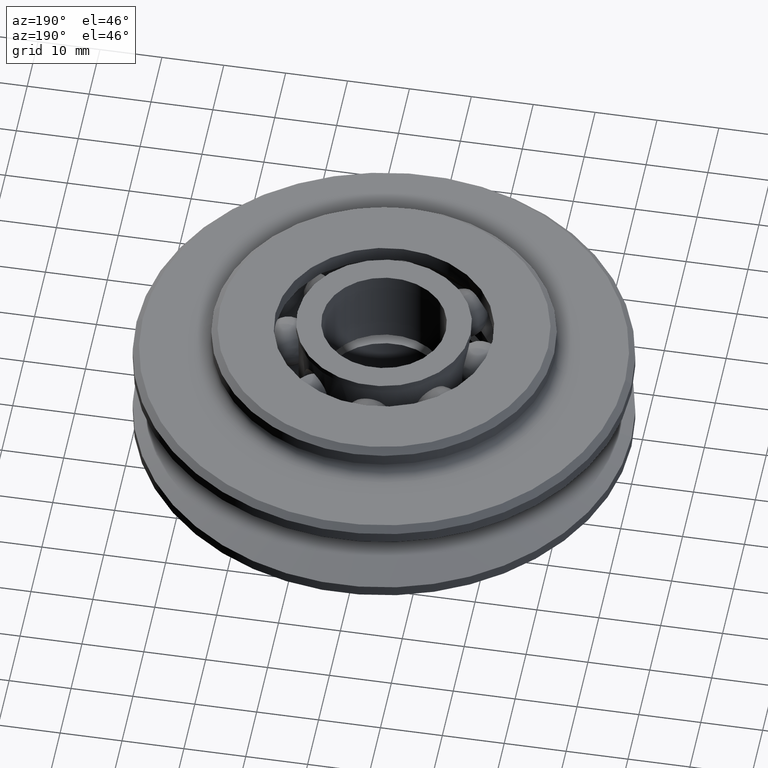
[diagram: clean part render]
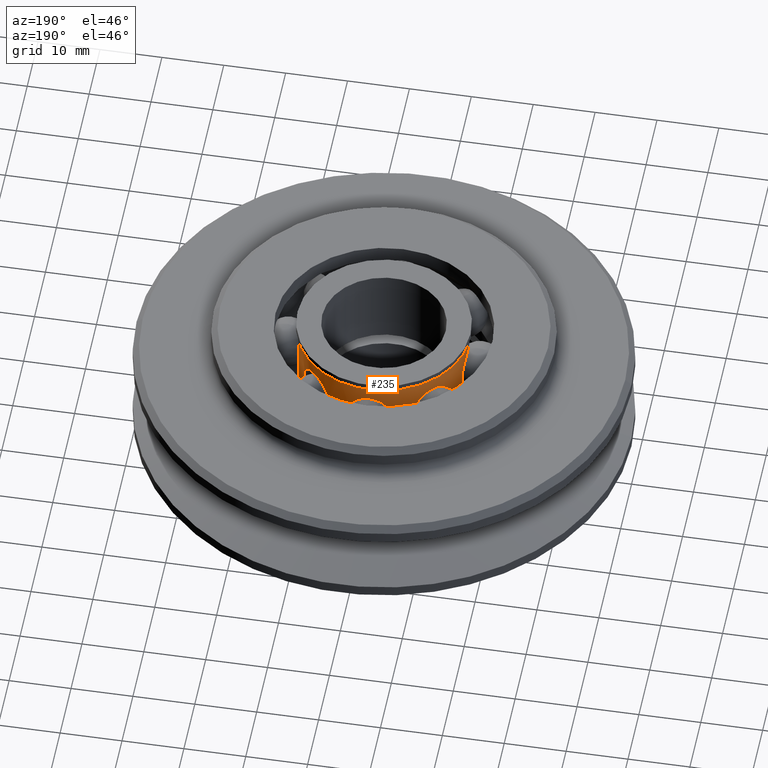
[diagram: same view with one face highlighted and labeled with its STEP entity id]
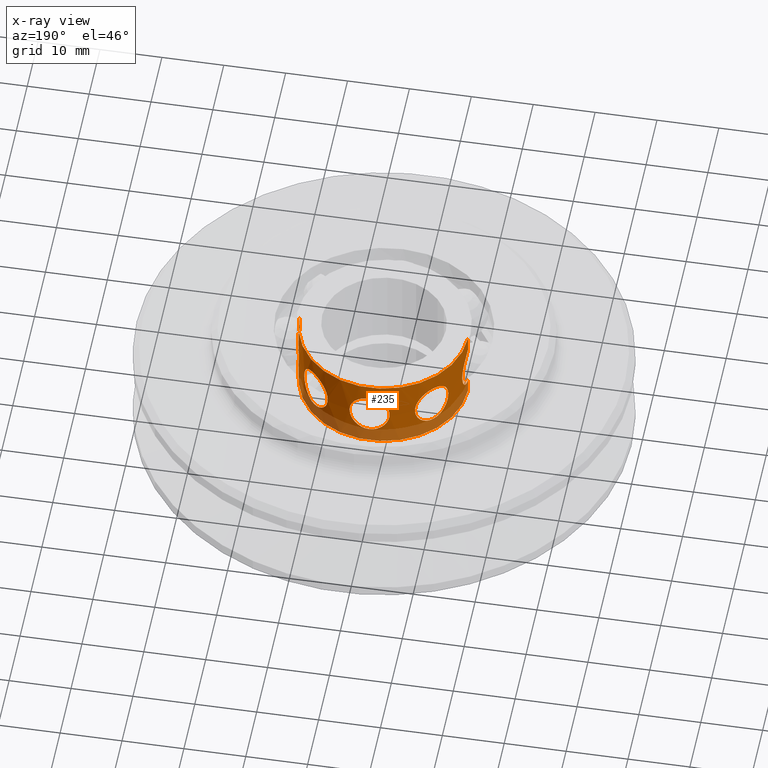
[diagram: x-ray of the same camera — body ghosted, the highlighted face saturated]
A machine part, auxiliary view. The second image highlights one B-rep face of the part: STEP entity #235.
The next image is the same camera in x-ray: the body ghosted, the highlighted face saturated — about 30% of this face is hidden behind the body in this view.
In plain terms, the highlighted cylindrical surface (partial cylindrical patch) has radius 13.6 mm, axis along (0, 0, 1).
Its self-contained STEP definition (entity closure, byte-faithful):
#235=ADVANCED_FACE('',(#547,#548,#549,#550),#551,.T.);
#547=FACE_BOUND('',#957,.T.);
#548=FACE_BOUND('',#958,.T.);
#549=FACE_BOUND('',#959,.T.);
#550=FACE_OUTER_BOUND('',#960,.T.);
#551=CYLINDRICAL_SURFACE('',#961,13.6);
#957=EDGE_LOOP('',(#1633,#1634,#1635));
#958=EDGE_LOOP('',(#1636,#1637,#1638));
#959=EDGE_LOOP('',(#1639,#1640,#1641));
#960=EDGE_LOOP('',(#1642,#1643,#1644,#1645,#1646,#1647,#1648,#1649,#1650));
#961=AXIS2_PLACEMENT_3D('',#1651,#1652,#1653);
#1633=ORIENTED_EDGE('',*,*,#2806,.F.);
#1634=ORIENTED_EDGE('',*,*,#2807,.F.);
#1635=ORIENTED_EDGE('',*,*,#2751,.F.);
#1636=ORIENTED_EDGE('',*,*,#2808,.F.);
#1637=ORIENTED_EDGE('',*,*,#2809,.F.);
#1638=ORIENTED_EDGE('',*,*,#2747,.F.);
#1639=ORIENTED_EDGE('',*,*,#2810,.F.);
#1640=ORIENTED_EDGE('',*,*,#2811,.F.);
#1641=ORIENTED_EDGE('',*,*,#2739,.F.);
#1642=ORIENTED_EDGE('',*,*,#2812,.F.);
#1643=ORIENTED_EDGE('',*,*,#2813,.F.);
#1644=ORIENTED_EDGE('',*,*,#2814,.F.);
#1645=ORIENTED_EDGE('',*,*,#2815,.F.);
#1646=ORIENTED_EDGE('',*,*,#2816,.F.);
#1647=ORIENTED_EDGE('',*,*,#2817,.F.);
#1648=ORIENTED_EDGE('',*,*,#2818,.F.);
#1649=ORIENTED_EDGE('',*,*,#2819,.F.);
#1650=ORIENTED_EDGE('',*,*,#2720,.F.);
#1651=CARTESIAN_POINT('',(0.0,0.0,7.0));
#1652=DIRECTION('',(0.0,0.0,1.0));
#1653=DIRECTION('',(1.0,0.0,0.0));
#2720=EDGE_CURVE('',#3365,#3367,#3368,.T.);
#2739=EDGE_CURVE('',#3396,#3398,#3399,.T.);
#2747=EDGE_CURVE('',#3410,#3412,#3413,.T.);
#2751=EDGE_CURVE('',#3416,#3419,#3420,.T.);
#2806=EDGE_CURVE('',#3511,#3416,#3512,.T.);
#2807=EDGE_CURVE('',#3419,#3511,#3513,.T.);
#2808=EDGE_CURVE('',#3514,#3410,#3515,.T.);
#2809=EDGE_CURVE('',#3412,#3514,#3516,.T.);
#2810=EDGE_CURVE('',#3517,#3396,#3518,.T.);
#2811=EDGE_CURVE('',#3398,#3517,#3519,.T.);
#2812=EDGE_CURVE('',#3520,#3365,#3521,.T.);
#2813=EDGE_CURVE('',#3522,#3520,#3523,.T.);
#2814=EDGE_CURVE('',#3430,#3522,#3524,.T.);
#2815=EDGE_CURVE('',#3525,#3430,#3526,.T.);
#2816=EDGE_CURVE('',#3433,#3525,#3527,.T.);
#2817=EDGE_CURVE('',#3528,#3433,#3529,.T.);
#2818=EDGE_CURVE('',#3530,#3528,#3531,.T.);
#2819=EDGE_CURVE('',#3367,#3530,#3532,.T.);
#3365=VERTEX_POINT('',#5080);
#3367=VERTEX_POINT('',#5082);
#3368=B_SPLINE_CURVE_WITH_KNOTS('',3,(#5083,#5084,#5085,#5086,#5087,#5088,#5089,#5090,#5091,#5092,#5093,#5094,#5095,#5096,#5097,#5098,#5099,#5100,#5101,#5102,#5103,#5104,#5105,#5106,#5107,#5108,#5109,#5110,#5111,#5112,#5113,#5114,#5115,#5116),.UNSPECIFIED.,.F.,.F.,(4,2,2,2,2,2,2,2,2,2,2,2,2,2,2,2,4),(5.11884378408548,5.51801321408464,5.91718264408379,6.31635207408295,6.71552150408211,7.59606302010432,8.47660453612653,9.35714605214875,10.237687568171,11.1182290841932,11.9987706002154,12.8793121162376,13.7598536322598,14.159023062259,14.5581924922581,14.9573619222573,15.3565313522564),.UNSPECIFIED.);
#3396=VERTEX_POINT('',#5244);
#3398=VERTEX_POINT('',#5246);
#3399=B_SPLINE_CURVE_WITH_KNOTS('',3,(#5247,#5248,#5249,#5250,#5251,#5252,#5253,#5254,#5255,#5256,#5257,#5258,#5259,#5260,#5261,#5262,#5263,#5264,#5265,#5266,#5267,#5268,#5269,#5270,#5271,#5272,#5273,#5274,#5275,#5276,#5277,#5278,#5279,#5280),.UNSPECIFIED.,.F.,.F.,(4,2,2,2,2,2,2,2,2,2,2,2,2,2,2,2,4),(5.11884378408547,5.51801321408463,5.91718264408379,6.31635207408294,6.7155215040821,7.59606302010431,8.47660453612652,9.35714605214874,10.237687568171,11.1182290841932,11.9987706002154,12.8793121162376,13.7598536322598,14.159023062259,14.5581924922581,14.9573619222573,15.3565313522564),.UNSPECIFIED.);
#3410=VERTEX_POINT('',#5326);
#3412=VERTEX_POINT('',#5328);
#3413=B_SPLINE_CURVE_WITH_KNOTS('',3,(#5329,#5330,#5331,#5332,#5333,#5334,#5335,#5336,#5337,#5338,#5339,#5340,#5341,#5342,#5343,#5344,#5345,#5346,#5347,#5348,#5349,#5350,#5351,#5352,#5353,#5354,#5355,#5356,#5357,#5358,#5359,#5360,#5361,#5362),.UNSPECIFIED.,.F.,.F.,(4,2,2,2,2,2,2,2,2,2,2,2,2,2,2,2,4),(5.11884378408548,5.51801321408463,5.91718264408379,6.31635207408294,6.7155215040821,7.59606302010431,8.47660453612653,9.35714605214874,10.237687568171,11.1182290841932,11.9987706002154,12.8793121162376,13.7598536322598,14.159023062259,14.5581924922581,14.9573619222573,15.3565313522564),.UNSPECIFIED.);
#3416=VERTEX_POINT('',#5365);
#3419=VERTEX_POINT('',#5368);
#3420=B_SPLINE_CURVE_WITH_KNOTS('',3,(#5369,#5370,#5371,#5372,#5373,#5374,#5375,#5376,#5377,#5378,#5379,#5380,#5381,#5382,#5383,#5384,#5385,#5386,#5387,#5388,#5389,#5390,#5391,#5392,#5393,#5394,#5395,#5396,#5397,#5398,#5399,#5400,#5401,#5402),.UNSPECIFIED.,.F.,.F.,(4,2,2,2,2,2,2,2,2,2,2,2,2,2,2,2,4),(5.11884378408548,5.51801321408463,5.91718264408379,6.31635207408294,6.7155215040821,7.59606302010431,8.47660453612652,9.35714605214874,10.237687568171,11.1182290841932,11.9987706002154,12.8793121162376,13.7598536322598,14.159023062259,14.5581924922581,14.9573619222573,15.3565313522564),.UNSPECIFIED.);
#3430=VERTEX_POINT('',#5447);
#3433=VERTEX_POINT('',#5450);
#3511=VERTEX_POINT('',#5874);
#3512=B_SPLINE_CURVE_WITH_KNOTS('',3,(#5875,#5876,#5877,#5878,#5879,#5880,#5881,#5882,#5883,#5884,#5885,#5886,#5887,#5888,#5889,#5890,#5891,#5892),.UNSPECIFIED.,.F.,.F.,(4,2,2,2,2,2,2,2,4),(0.0,0.880541516022213,1.76108303204443,2.64162454806664,3.52216606408885,3.92133549408801,4.32050492408716,4.71967435408632,5.11884378408548),.UNSPECIFIED.);
#3513=B_SPLINE_CURVE_WITH_KNOTS('',3,(#5893,#5894,#5895,#5896,#5897,#5898,#5899,#5900,#5901,#5902,#5903,#5904,#5905,#5906,#5907,#5908,#5909,#5910),.UNSPECIFIED.,.F.,.F.,(4,2,2,2,2,2,2,2,4),(15.3565313522564,15.7557007822556,16.1548702122547,16.5540396422539,16.953209072253,17.8337505882753,18.7142921042975,19.5948336203197,20.4753751363419),.UNSPECIFIED.);
#3514=VERTEX_POINT('',#5911);
#3515=B_SPLINE_CURVE_WITH_KNOTS('',3,(#5912,#5913,#5914,#5915,#5916,#5917,#5918,#5919,#5920,#5921,#5922,#5923,#5924,#5925,#5926,#5927,#5928,#5929),.UNSPECIFIED.,.F.,.F.,(4,2,2,2,2,2,2,2,4),(0.0,0.880541516022212,1.76108303204442,2.64162454806664,3.52216606408885,3.92133549408801,4.32050492408716,4.71967435408632,5.11884378408548),.UNSPECIFIED.);
#3516=B_SPLINE_CURVE_WITH_KNOTS('',3,(#5930,#5931,#5932,#5933,#5934,#5935,#5936,#5937,#5938,#5939,#5940,#5941,#5942,#5943,#5944,#5945,#5946,#5947),.UNSPECIFIED.,.F.,.F.,(4,2,2,2,2,2,2,2,4),(15.3565313522564,15.7557007822556,16.1548702122548,16.5540396422539,16.9532090722531,17.8337505882753,18.7142921042975,19.5948336203197,20.4753751363419),.UNSPECIFIED.);
#3517=VERTEX_POINT('',#5948);
#3518=B_SPLINE_CURVE_WITH_KNOTS('',3,(#5949,#5950,#5951,#5952,#5953,#5954,#5955,#5956,#5957,#5958,#5959,#5960,#5961,#5962,#5963,#5964,#5965,#5966),.UNSPECIFIED.,.F.,.F.,(4,2,2,2,2,2,2,2,4),(0.0,0.880541516022213,1.76108303204443,2.64162454806664,3.52216606408885,3.92133549408801,4.32050492408716,4.71967435408632,5.11884378408547),.UNSPECIFIED.);
#3519=B_SPLINE_CURVE_WITH_KNOTS('',3,(#5967,#5968,#5969,#5970,#5971,#5972,#5973,#5974,#5975,#5976,#5977,#5978,#5979,#5980,#5981,#5982,#5983,#5984),.UNSPECIFIED.,.F.,.F.,(4,2,2,2,2,2,2,2,4),(15.3565313522564,15.7557007822556,16.1548702122547,16.5540396422539,16.953209072253,17.8337505882753,18.7142921042975,19.5948336203197,20.4753751363419),.UNSPECIFIED.);
#3520=VERTEX_POINT('',#5985);
#3521=LINE('',#5986,#5987);
#3522=VERTEX_POINT('',#5988);
#3523=CIRCLE('',#5989,13.6);
#3524=LINE('',#5990,#5991);
#3525=VERTEX_POINT('',#5992);
#3526=B_SPLINE_CURVE_WITH_KNOTS('',3,(#5993,#5994,#5995,#5996,#5997,#5998,#5999,#6000,#6001,#6002,#6003,#6004,#6005,#6006,#6007,#6008,#6009,#6010),.UNSPECIFIED.,.F.,.F.,(4,2,2,2,2,2,2,2,4),(0.0,0.880541516022213,1.76108303204443,2.64162454806664,3.52216606408885,3.92133549408801,4.32050492408717,4.71967435408632,5.11884378408548),.UNSPECIFIED.);
#3527=B_SPLINE_CURVE_WITH_KNOTS('',3,(#6011,#6012,#6013,#6014,#6015,#6016,#6017,#6018,#6019,#6020,#6021,#6022,#6023,#6024,#6025,#6026,#6027,#6028),.UNSPECIFIED.,.F.,.F.,(4,2,2,2,2,2,2,2,4),(15.3565313522564,15.7557007822556,16.1548702122548,16.5540396422539,16.9532090722531,17.8337505882753,18.7142921042975,19.5948336203197,20.4753751363419),.UNSPECIFIED.);
#3528=VERTEX_POINT('',#6029);
#3529=LINE('',#6030,#6031);
#3530=VERTEX_POINT('',#6032);
#3531=CIRCLE('',#6033,13.6);
#3532=LINE('',#6034,#6035);
#5080=CARTESIAN_POINT('',(13.6,-8.25820929516293E-016,3.52557918495759));
#5082=CARTESIAN_POINT('',(13.6,-8.327598234202E-016,10.4744208150424));
#5083=CARTESIAN_POINT('',(13.6,1.38777878078145E-017,3.52557918495759));
#5084=CARTESIAN_POINT('',(13.6,0.133056476666386,3.52557918495759));
#5085=CARTESIAN_POINT('',(13.5980055949989,0.271707385761776,3.53443566578162));
#5086=CARTESIAN_POINT('',(13.5895360727834,0.551443914183474,3.57252557018243));
#5087=CARTESIAN_POINT('',(13.5830617961631,0.692529474987496,3.60175961045754));
#5088=CARTESIAN_POINT('',(13.5661500191705,0.968884924298131,3.67979320654764));
#5089=CARTESIAN_POINT('',(13.5557126732144,1.10427590195003,3.72862432216196));
#5090=CARTESIAN_POINT('',(13.5322258131545,1.36221726826128,3.84186666432335));
#5091=CARTESIAN_POINT('',(13.5191882204582,1.48477073564191,3.9062733503762));
#5092=CARTESIAN_POINT('',(13.4762482873043,1.84769157317782,4.12628894471587));
#5093=CARTESIAN_POINT('',(13.4416816527091,2.07940766338172,4.31461867790565));
#5094=CARTESIAN_POINT('',(13.3722648655813,2.48702115072023,4.75069955585992));
#5095=CARTESIAN_POINT('',(13.3375294426858,2.66294674167265,4.9984426023022));
#5096=CARTESIAN_POINT('',(13.2777950706208,2.94637594930854,5.53218860418191));
#5097=CARTESIAN_POINT('',(13.2528229399806,3.05418339474074,5.8187738890709));
#5098=CARTESIAN_POINT('',(13.219198442041,3.19658327422026,6.40591608579654));
#5099=CARTESIAN_POINT('',(13.2105935483871,3.23113263412587,6.70648616132593));
#5100=CARTESIAN_POINT('',(13.2105935483871,3.23113263412587,7.29351383867407));
#5101=CARTESIAN_POINT('',(13.219198442041,3.19658327422026,7.59408391420346));
#5102=CARTESIAN_POINT('',(13.2528229399806,3.05418339474075,8.1812261109291));
#5103=CARTESIAN_POINT('',(13.2777950706208,2.94637594930854,8.46781139581809));
#5104=CARTESIAN_POINT('',(13.3375294426858,2.66294674167265,9.0015573976978));
#5105=CARTESIAN_POINT('',(13.3722648655813,2.48702115072023,9.24930044414008));
#5106=CARTESIAN_POINT('',(13.4416816527091,2.07940766338172,9.68538132209435));
#5107=CARTESIAN_POINT('',(13.4762482873043,1.84769157317782,9.87371105528413));
#5108=CARTESIAN_POINT('',(13.5191882204582,1.48477073564191,10.0937266496238));
#5109=CARTESIAN_POINT('',(13.5322258131545,1.36221726826128,10.1581333356767));
#5110=CARTESIAN_POINT('',(13.5557126732144,1.10427590195003,10.271375677838));
#5111=CARTESIAN_POINT('',(13.5661500191705,0.96888492429813,10.3202067934524));
#5112=CARTESIAN_POINT('',(13.5830617961631,0.692529474987495,10.3982403895425));
#5113=CARTESIAN_POINT('',(13.5895360727834,0.551443914183473,10.4274744298176));
#5114=CARTESIAN_POINT('',(13.5980055949989,0.271707385761775,10.4655643342184));
#5115=CARTESIAN_POINT('',(13.6,0.133056476666385,10.4744208150424));
#5116=CARTESIAN_POINT('',(13.6,-8.327598234202E-016,10.4744208150424));
#5244=CARTESIAN_POINT('',(9.61665222413705,9.61665222413705,3.52557918495759));
#5246=CARTESIAN_POINT('',(9.61665222413705,9.61665222413705,10.4744208150424));
#5247=CARTESIAN_POINT('',(9.61665222413705,9.61665222413705,3.52557918495759));
#5248=CARTESIAN_POINT('',(9.52256708720545,9.71073736106864,3.52557918495759));
#5249=CARTESIAN_POINT('',(9.42311583186574,9.80736810180698,3.53443566578163));
#5250=CARTESIAN_POINT('',(9.21932337908113,9.9991828414075,3.57252557018244));
#5251=CARTESIAN_POINT('',(9.11498281740763,10.0943673932781,3.60175961045754));
#5252=CARTESIAN_POINT('',(8.90761157298885,10.2778217733101,3.67979320654765));
#5253=CARTESIAN_POINT('',(8.80449537647654,10.3661773336161,3.72862432216197));
#5254=CARTESIAN_POINT('',(8.60549556919219,10.5319617048661,3.84186666432335));
#5255=CARTESIAN_POINT('',(8.50961821114352,10.609401122503,3.9062733503762));
#5256=CARTESIAN_POINT('',(8.22263130797122,10.8356617898418,4.12628894471587));
#5257=CARTESIAN_POINT('',(8.03434098755291,10.9750675068099,4.31461867790565));
#5258=CARTESIAN_POINT('',(7.69702964564653,11.2142086869038,4.75069955585992));
#5259=CARTESIAN_POINT('',(7.548069814223,11.3140452121737,4.9984426023022));
#5260=CARTESIAN_POINT('',(7.30541651996024,11.4722213473223,5.53218860418191));
#5261=CARTESIAN_POINT('',(7.21152718131637,11.5307947601334,5.81877388907091));
#5262=CARTESIAN_POINT('',(7.08705915038918,11.6077105700465,6.40591608579654));
#5263=CARTESIAN_POINT('',(7.05654448506021,11.6260560780673,6.70648616132593));
#5264=CARTESIAN_POINT('',(7.05654448506021,11.6260560780673,7.29351383867407));
#5265=CARTESIAN_POINT('',(7.08705915038918,11.6077105700465,7.59408391420346));
#5266=CARTESIAN_POINT('',(7.21152718131637,11.5307947601334,8.1812261109291));
#5267=CARTESIAN_POINT('',(7.30541651996024,11.4722213473223,8.46781139581809));
#5268=CARTESIAN_POINT('',(7.548069814223,11.3140452121737,9.0015573976978));
#5269=CARTESIAN_POINT('',(7.69702964564653,11.2142086869038,9.24930044414008));
#5270=CARTESIAN_POINT('',(8.03434098755291,10.9750675068099,9.68538132209435));
#5271=CARTESIAN_POINT('',(8.22263130797122,10.8356617898418,9.87371105528413));
#5272=CARTESIAN_POINT('',(8.50961821114352,10.609401122503,10.0937266496238));
#5273=CARTESIAN_POINT('',(8.60549556919219,10.5319617048661,10.1581333356767));
#5274=CARTESIAN_POINT('',(8.80449537647654,10.3661773336161,10.271375677838));
#5275=CARTESIAN_POINT('',(8.90761157298886,10.2778217733101,10.3202067934524));
#5276=CARTESIAN_POINT('',(9.11498281740763,10.0943673932781,10.3982403895425));
#5277=CARTESIAN_POINT('',(9.21932337908113,9.9991828414075,10.4274744298176));
#5278=CARTESIAN_POINT('',(9.42311583186574,9.80736810180698,10.4655643342184));
#5279=CARTESIAN_POINT('',(9.52256708720546,9.71073736106864,10.4744208150424));
#5280=CARTESIAN_POINT('',(9.61665222413705,9.61665222413705,10.4744208150424));
#5326=CARTESIAN_POINT('',(1.80573216546332E-015,13.6,3.52557918495758));
#5328=CARTESIAN_POINT('',(1.79185437765549E-015,13.6,10.4744208150424));
#5329=CARTESIAN_POINT('',(3.84414722276463E-015,13.6,3.52557918495758));
#5330=CARTESIAN_POINT('',(-0.133056476666381,13.6,3.52557918495758));
#5331=CARTESIAN_POINT('',(-0.271707385761771,13.5980055949989,3.53443566578162));
#5332=CARTESIAN_POINT('',(-0.55144391418347,13.5895360727834,3.57252557018243));
#5333=CARTESIAN_POINT('',(-0.692529474987491,13.5830617961631,3.60175961045754));
#5334=CARTESIAN_POINT('',(-0.968884924298127,13.5661500191705,3.67979320654764));
#5335=CARTESIAN_POINT('',(-1.10427590195003,13.5557126732144,3.72862432216196));
#5336=CARTESIAN_POINT('',(-1.36221726826128,13.5322258131545,3.84186666432335));
#5337=CARTESIAN_POINT('',(-1.48477073564191,13.5191882204582,3.90627335037619));
#5338=CARTESIAN_POINT('',(-1.84769157317782,13.4762482873043,4.12628894471586));
#5339=CARTESIAN_POINT('',(-2.07940766338172,13.4416816527091,4.31461867790565));
#5340=CARTESIAN_POINT('',(-2.48702115072023,13.3722648655813,4.75069955585991));
#5341=CARTESIAN_POINT('',(-2.66294674167265,13.3375294426858,4.9984426023022));
#5342=CARTESIAN_POINT('',(-2.94637594930854,13.2777950706208,5.53218860418191));
#5343=CARTESIAN_POINT('',(-3.05418339474074,13.2528229399806,5.8187738890709));
#5344=CARTESIAN_POINT('',(-3.19658327422026,13.219198442041,6.40591608579654));
#5345=CARTESIAN_POINT('',(-3.23113263412587,13.2105935483871,6.70648616132593));
#5346=CARTESIAN_POINT('',(-3.23113263412587,13.2105935483871,7.29351383867407));
#5347=CARTESIAN_POINT('',(-3.19658327422026,13.219198442041,7.59408391420346));
#5348=CARTESIAN_POINT('',(-3.05418339474074,13.2528229399806,8.1812261109291));
#5349=CARTESIAN_POINT('',(-2.94637594930854,13.2777950706208,8.46781139581809));
#5350=CARTESIAN_POINT('',(-2.66294674167265,13.3375294426858,9.0015573976978));
#5351=CARTESIAN_POINT('',(-2.48702115072023,13.3722648655813,9.24930044414008));
#5352=CARTESIAN_POINT('',(-2.07940766338172,13.4416816527091,9.68538132209435));
#5353=CARTESIAN_POINT('',(-1.84769157317782,13.4762482873043,9.87371105528413));
#5354=CARTESIAN_POINT('',(-1.48477073564191,13.5191882204582,10.0937266496238));
#5355=CARTESIAN_POINT('',(-1.36221726826128,13.5322258131545,10.1581333356767));
#5356=CARTESIAN_POINT('',(-1.10427590195003,13.5557126732144,10.271375677838));
#5357=CARTESIAN_POINT('',(-0.968884924298127,13.5661500191705,10.3202067934524));
#5358=CARTESIAN_POINT('',(-0.692529474987491,13.5830617961631,10.3982403895425));
#5359=CARTESIAN_POINT('',(-0.551443914183469,13.5895360727834,10.4274744298176));
#5360=CARTESIAN_POINT('',(-0.27170738576177,13.5980055949989,10.4655643342184));
#5361=CARTESIAN_POINT('',(-0.133056476666383,13.6,10.4744208150424));
#5362=CARTESIAN_POINT('',(1.79185437765549E-015,13.6,10.4744208150424));
#5365=CARTESIAN_POINT('',(-9.61665222413705,9.61665222413705,3.52557918495759));
#5368=CARTESIAN_POINT('',(-9.61665222413705,9.61665222413705,10.4744208150424));
#5369=CARTESIAN_POINT('',(-9.61665222413705,9.61665222413705,3.52557918495759));
#5370=CARTESIAN_POINT('',(-9.71073736106864,9.52256708720545,3.52557918495759));
#5371=CARTESIAN_POINT('',(-9.80736810180698,9.42311583186575,3.53443566578163));
#5372=CARTESIAN_POINT('',(-9.9991828414075,9.21932337908113,3.57252557018244));
#5373=CARTESIAN_POINT('',(-10.0943673932781,9.11498281740763,3.60175961045754));
#5374=CARTESIAN_POINT('',(-10.2778217733101,8.90761157298886,3.67979320654764));
#5375=CARTESIAN_POINT('',(-10.3661773336161,8.80449537647654,3.72862432216197));
#5376=CARTESIAN_POINT('',(-10.5319617048661,8.60549556919219,3.84186666432335));
#5377=CARTESIAN_POINT('',(-10.609401122503,8.50961821114352,3.9062733503762));
#5378=CARTESIAN_POINT('',(-10.8356617898418,8.22263130797122,4.12628894471587));
#5379=CARTESIAN_POINT('',(-10.9750675068099,8.03434098755291,4.31461867790565));
#5380=CARTESIAN_POINT('',(-11.2142086869038,7.69702964564653,4.75069955585992));
#5381=CARTESIAN_POINT('',(-11.3140452121737,7.548069814223,4.9984426023022));
#5382=CARTESIAN_POINT('',(-11.4722213473223,7.30541651996024,5.53218860418191));
#5383=CARTESIAN_POINT('',(-11.5307947601334,7.21152718131637,5.81877388907091));
#5384=CARTESIAN_POINT('',(-11.6077105700465,7.08705915038918,6.40591608579654));
#5385=CARTESIAN_POINT('',(-11.6260560780673,7.05654448506021,6.70648616132593));
#5386=CARTESIAN_POINT('',(-11.6260560780673,7.05654448506021,7.29351383867407));
#5387=CARTESIAN_POINT('',(-11.6077105700465,7.08705915038918,7.59408391420346));
#5388=CARTESIAN_POINT('',(-11.5307947601334,7.21152718131637,8.1812261109291));
#5389=CARTESIAN_POINT('',(-11.4722213473223,7.30541651996024,8.46781139581809));
#5390=CARTESIAN_POINT('',(-11.3140452121737,7.548069814223,9.0015573976978));
#5391=CARTESIAN_POINT('',(-11.2142086869038,7.69702964564653,9.24930044414009));
#5392=CARTESIAN_POINT('',(-10.9750675068099,8.03434098755291,9.68538132209435));
#5393=CARTESIAN_POINT('',(-10.8356617898418,8.22263130797122,9.87371105528413));
#5394=CARTESIAN_POINT('',(-10.609401122503,8.50961821114352,10.0937266496238));
#5395=CARTESIAN_POINT('',(-10.5319617048661,8.60549556919219,10.1581333356767));
#5396=CARTESIAN_POINT('',(-10.3661773336161,8.80449537647654,10.271375677838));
#5397=CARTESIAN_POINT('',(-10.2778217733101,8.90761157298886,10.3202067934524));
#5398=CARTESIAN_POINT('',(-10.0943673932781,9.11498281740763,10.3982403895425));
#5399=CARTESIAN_POINT('',(-9.9991828414075,9.21932337908112,10.4274744298176));
#5400=CARTESIAN_POINT('',(-9.80736810180698,9.42311583186574,10.4655643342184));
#5401=CARTESIAN_POINT('',(-9.71073736106864,9.52256708720546,10.4744208150424));
#5402=CARTESIAN_POINT('',(-9.61665222413705,9.61665222413705,10.4744208150424));
#5447=CARTESIAN_POINT('',(-13.6,1.66542709188907E-015,3.52557918495759));
#5450=CARTESIAN_POINT('',(-13.6,1.6931826675047E-015,10.4744208150424));
#5874=CARTESIAN_POINT('',(-7.05654448506021,11.6260560780673,7.0));
#5875=CARTESIAN_POINT('',(-7.05654448506021,11.6260560780673,7.0));
#5876=CARTESIAN_POINT('',(-7.05654448506021,11.6260560780673,6.70648616132593));
#5877=CARTESIAN_POINT('',(-7.08705915038918,11.6077105700465,6.40591608579654));
#5878=CARTESIAN_POINT('',(-7.21152718131637,11.5307947601334,5.81877388907091));
#5879=CARTESIAN_POINT('',(-7.30541651996024,11.4722213473223,5.53218860418191));
#5880=CARTESIAN_POINT('',(-7.548069814223,11.3140452121737,4.99844260230221));
#5881=CARTESIAN_POINT('',(-7.69702964564653,11.2142086869038,4.75069955585992));
#5882=CARTESIAN_POINT('',(-8.03434098755291,10.9750675068099,4.31461867790566));
#5883=CARTESIAN_POINT('',(-8.22263130797122,10.8356617898418,4.12628894471587));
#5884=CARTESIAN_POINT('',(-8.50961821114352,10.609401122503,3.9062733503762));
#5885=CARTESIAN_POINT('',(-8.60549556919218,10.5319617048661,3.84186666432335));
#5886=CARTESIAN_POINT('',(-8.80449537647654,10.3661773336161,3.72862432216197));
#5887=CARTESIAN_POINT('',(-8.90761157298886,10.2778217733101,3.67979320654764));
#5888=CARTESIAN_POINT('',(-9.11498281740763,10.0943673932781,3.60175961045754));
#5889=CARTESIAN_POINT('',(-9.21932337908113,9.9991828414075,3.57252557018244));
#5890=CARTESIAN_POINT('',(-9.42311583186574,9.80736810180698,3.53443566578163));
#5891=CARTESIAN_POINT('',(-9.52256708720546,9.71073736106864,3.52557918495759));
#5892=CARTESIAN_POINT('',(-9.61665222413705,9.61665222413705,3.52557918495759));
#5893=CARTESIAN_POINT('',(-9.61665222413705,9.61665222413705,10.4744208150424));
#5894=CARTESIAN_POINT('',(-9.52256708720545,9.71073736106864,10.4744208150424));
#5895=CARTESIAN_POINT('',(-9.42311583186574,9.80736810180698,10.4655643342184));
#5896=CARTESIAN_POINT('',(-9.21932337908112,9.9991828414075,10.4274744298176));
#5897=CARTESIAN_POINT('',(-9.11498281740763,10.0943673932781,10.3982403895425));
#5898=CARTESIAN_POINT('',(-8.90761157298886,10.2778217733101,10.3202067934524));
#5899=CARTESIAN_POINT('',(-8.80449537647654,10.3661773336161,10.271375677838));
#5900=CARTESIAN_POINT('',(-8.60549556919218,10.5319617048661,10.1581333356767));
#5901=CARTESIAN_POINT('',(-8.50961821114352,10.609401122503,10.0937266496238));
#5902=CARTESIAN_POINT('',(-8.22263130797122,10.8356617898418,9.87371105528413));
#5903=CARTESIAN_POINT('',(-8.03434098755291,10.9750675068099,9.68538132209435));
#5904=CARTESIAN_POINT('',(-7.69702964564653,11.2142086869038,9.24930044414008));
#5905=CARTESIAN_POINT('',(-7.548069814223,11.3140452121737,9.0015573976978));
#5906=CARTESIAN_POINT('',(-7.30541651996024,11.4722213473223,8.46781139581809));
#5907=CARTESIAN_POINT('',(-7.21152718131637,11.5307947601334,8.1812261109291));
#5908=CARTESIAN_POINT('',(-7.08705915038918,11.6077105700465,7.59408391420347));
#5909=CARTESIAN_POINT('',(-7.05654448506021,11.6260560780673,7.29351383867407));
#5910=CARTESIAN_POINT('',(-7.05654448506021,11.6260560780673,7.0));
#5911=CARTESIAN_POINT('',(3.23113263412587,13.2105935483871,7.0));
#5912=CARTESIAN_POINT('',(3.23113263412587,13.2105935483871,7.0));
#5913=CARTESIAN_POINT('',(3.23113263412587,13.2105935483871,6.70648616132593));
#5914=CARTESIAN_POINT('',(3.19658327422026,13.219198442041,6.40591608579654));
#5915=CARTESIAN_POINT('',(3.05418339474075,13.2528229399806,5.81877388907091));
#5916=CARTESIAN_POINT('',(2.94637594930855,13.2777950706208,5.53218860418191));
#5917=CARTESIAN_POINT('',(2.66294674167266,13.3375294426858,4.9984426023022));
#5918=CARTESIAN_POINT('',(2.48702115072024,13.3722648655813,4.75069955585992));
#5919=CARTESIAN_POINT('',(2.07940766338173,13.4416816527091,4.31461867790566));
#5920=CARTESIAN_POINT('',(1.84769157317783,13.4762482873043,4.12628894471587));
#5921=CARTESIAN_POINT('',(1.48477073564192,13.5191882204582,3.9062733503762));
#5922=CARTESIAN_POINT('',(1.36221726826129,13.5322258131544,3.84186666432335));
#5923=CARTESIAN_POINT('',(1.10427590195004,13.5557126732144,3.72862432216197));
#5924=CARTESIAN_POINT('',(0.968884924298135,13.5661500191705,3.67979320654764));
#5925=CARTESIAN_POINT('',(0.6925294749875,13.5830617961631,3.60175961045754));
#5926=CARTESIAN_POINT('',(0.551443914183478,13.5895360727834,3.57252557018243));
#5927=CARTESIAN_POINT('',(0.27170738576178,13.5980055949989,3.53443566578162));
#5928=CARTESIAN_POINT('',(0.133056476666387,13.6,3.52557918495758));
#5929=CARTESIAN_POINT('',(1.80573216546332E-015,13.6,3.52557918495758));
#5930=CARTESIAN_POINT('',(3.81639164714898E-015,13.6,10.4744208150424));
#5931=CARTESIAN_POINT('',(0.133056476666389,13.6,10.4744208150424));
#5932=CARTESIAN_POINT('',(0.271707385761779,13.5980055949989,10.4655643342184));
#5933=CARTESIAN_POINT('',(0.551443914183478,13.5895360727834,10.4274744298176));
#5934=CARTESIAN_POINT('',(0.6925294749875,13.5830617961631,10.3982403895425));
#5935=CARTESIAN_POINT('',(0.968884924298135,13.5661500191705,10.3202067934524));
#5936=CARTESIAN_POINT('',(1.10427590195004,13.5557126732144,10.271375677838));
#5937=CARTESIAN_POINT('',(1.36221726826129,13.5322258131544,10.1581333356767));
#5938=CARTESIAN_POINT('',(1.48477073564192,13.5191882204582,10.0937266496238));
#5939=CARTESIAN_POINT('',(1.84769157317783,13.4762482873043,9.87371105528413));
#5940=CARTESIAN_POINT('',(2.07940766338172,13.4416816527091,9.68538132209435));
#5941=CARTESIAN_POINT('',(2.48702115072024,13.3722648655813,9.24930044414008));
#5942=CARTESIAN_POINT('',(2.66294674167266,13.3375294426858,9.0015573976978));
#5943=CARTESIAN_POINT('',(2.94637594930855,13.2777950706208,8.46781139581809));
#5944=CARTESIAN_POINT('',(3.05418339474075,13.2528229399806,8.1812261109291));
#5945=CARTESIAN_POINT('',(3.19658327422026,13.219198442041,7.59408391420346));
#5946=CARTESIAN_POINT('',(3.23113263412587,13.2105935483871,7.29351383867407));
#5947=CARTESIAN_POINT('',(3.23113263412587,13.2105935483871,7.0));
#5948=CARTESIAN_POINT('',(11.6260560780673,7.05654448506021,7.0));
#5949=CARTESIAN_POINT('',(11.6260560780673,7.05654448506021,7.0));
#5950=CARTESIAN_POINT('',(11.6260560780673,7.05654448506021,6.70648616132593));
#5951=CARTESIAN_POINT('',(11.6077105700465,7.08705915038918,6.40591608579654));
#5952=CARTESIAN_POINT('',(11.5307947601334,7.21152718131637,5.81877388907091));
#5953=CARTESIAN_POINT('',(11.4722213473223,7.30541651996024,5.53218860418191));
#5954=CARTESIAN_POINT('',(11.3140452121737,7.548069814223,4.9984426023022));
#5955=CARTESIAN_POINT('',(11.2142086869038,7.69702964564653,4.75069955585992));
#5956=CARTESIAN_POINT('',(10.9750675068099,8.03434098755291,4.31461867790566));
#5957=CARTESIAN_POINT('',(10.8356617898418,8.22263130797122,4.12628894471587));
#5958=CARTESIAN_POINT('',(10.609401122503,8.50961821114352,3.9062733503762));
#5959=CARTESIAN_POINT('',(10.5319617048661,8.60549556919218,3.84186666432335));
#5960=CARTESIAN_POINT('',(10.3661773336161,8.80449537647654,3.72862432216197));
#5961=CARTESIAN_POINT('',(10.2778217733101,8.90761157298885,3.67979320654765));
#5962=CARTESIAN_POINT('',(10.0943673932781,9.11498281740763,3.60175961045754));
#5963=CARTESIAN_POINT('',(9.9991828414075,9.21932337908112,3.57252557018244));
#5964=CARTESIAN_POINT('',(9.80736810180698,9.42311583186574,3.53443566578163));
#5965=CARTESIAN_POINT('',(9.71073736106864,9.52256708720546,3.52557918495759));
#5966=CARTESIAN_POINT('',(9.61665222413705,9.61665222413705,3.52557918495759));
#5967=CARTESIAN_POINT('',(9.61665222413705,9.61665222413705,10.4744208150424));
#5968=CARTESIAN_POINT('',(9.71073736106864,9.52256708720545,10.4744208150424));
#5969=CARTESIAN_POINT('',(9.80736810180698,9.42311583186574,10.4655643342184));
#5970=CARTESIAN_POINT('',(9.9991828414075,9.21932337908113,10.4274744298176));
#5971=CARTESIAN_POINT('',(10.0943673932781,9.11498281740763,10.3982403895425));
#5972=CARTESIAN_POINT('',(10.2778217733101,8.90761157298886,10.3202067934524));
#5973=CARTESIAN_POINT('',(10.3661773336161,8.80449537647654,10.271375677838));
#5974=CARTESIAN_POINT('',(10.5319617048661,8.60549556919219,10.1581333356767));
#5975=CARTESIAN_POINT('',(10.609401122503,8.50961821114352,10.0937266496238));
#5976=CARTESIAN_POINT('',(10.8356617898418,8.22263130797122,9.87371105528413));
#5977=CARTESIAN_POINT('',(10.9750675068099,8.03434098755291,9.68538132209435));
#5978=CARTESIAN_POINT('',(11.2142086869038,7.69702964564653,9.24930044414009));
#5979=CARTESIAN_POINT('',(11.3140452121737,7.548069814223,9.0015573976978));
#5980=CARTESIAN_POINT('',(11.4722213473223,7.30541651996024,8.4678113958181));
#5981=CARTESIAN_POINT('',(11.5307947601334,7.21152718131637,8.1812261109291));
#5982=CARTESIAN_POINT('',(11.6077105700465,7.08705915038918,7.59408391420347));
#5983=CARTESIAN_POINT('',(11.6260560780673,7.05654448506021,7.29351383867407));
#5984=CARTESIAN_POINT('',(11.6260560780673,7.05654448506021,7.0));
#5985=CARTESIAN_POINT('',(13.6,0.0,1.0));
#5986=CARTESIAN_POINT('',(13.6,-1.6655196468404E-015,7.0));
#5987=VECTOR('',#8426,1.0);
#5988=CARTESIAN_POINT('',(-13.6,1.6655196468404E-015,1.0));
#5989=AXIS2_PLACEMENT_3D('',#8427,#8428,#8429);
#5990=CARTESIAN_POINT('',(-13.6,1.6655196468404E-015,7.0));
#5991=VECTOR('',#8430,1.0);
#5992=CARTESIAN_POINT('',(-13.2105935483871,3.23113263412587,7.0));
#5993=CARTESIAN_POINT('',(-13.2105935483871,3.23113263412587,7.0));
#5994=CARTESIAN_POINT('',(-13.2105935483871,3.23113263412587,6.70648616132593));
#5995=CARTESIAN_POINT('',(-13.219198442041,3.19658327422026,6.40591608579654));
#5996=CARTESIAN_POINT('',(-13.2528229399806,3.05418339474075,5.8187738890709));
#5997=CARTESIAN_POINT('',(-13.2777950706208,2.94637594930855,5.53218860418191));
#5998=CARTESIAN_POINT('',(-13.3375294426858,2.66294674167265,4.9984426023022));
#5999=CARTESIAN_POINT('',(-13.3722648655813,2.48702115072023,4.75069955585992));
#6000=CARTESIAN_POINT('',(-13.4416816527091,2.07940766338172,4.31461867790565));
#6001=CARTESIAN_POINT('',(-13.4762482873043,1.84769157317782,4.12628894471587));
#6002=CARTESIAN_POINT('',(-13.5191882204582,1.48477073564191,3.9062733503762));
#6003=CARTESIAN_POINT('',(-13.5322258131545,1.36221726826128,3.84186666432335));
#6004=CARTESIAN_POINT('',(-13.5557126732144,1.10427590195003,3.72862432216196));
#6005=CARTESIAN_POINT('',(-13.5661500191705,0.968884924298131,3.67979320654764));
#6006=CARTESIAN_POINT('',(-13.5830617961631,0.692529474987496,3.60175961045754));
#6007=CARTESIAN_POINT('',(-13.5895360727834,0.551443914183475,3.57252557018243));
#6008=CARTESIAN_POINT('',(-13.5980055949989,0.271707385761777,3.53443566578162));
#6009=CARTESIAN_POINT('',(-13.6,0.133056476666387,3.52557918495759));
#6010=CARTESIAN_POINT('',(-13.6,1.66542709188907E-015,3.52557918495759));
#6011=CARTESIAN_POINT('',(-13.6,1.72084568816899E-015,10.4744208150424));
#6012=CARTESIAN_POINT('',(-13.6,0.133056476666387,10.4744208150424));
#6013=CARTESIAN_POINT('',(-13.5980055949989,0.271707385761778,10.4655643342184));
#6014=CARTESIAN_POINT('',(-13.5895360727834,0.551443914183476,10.4274744298176));
#6015=CARTESIAN_POINT('',(-13.5830617961631,0.692529474987498,10.3982403895425));
#6016=CARTESIAN_POINT('',(-13.5661500191705,0.968884924298132,10.3202067934524));
#6017=CARTESIAN_POINT('',(-13.5557126732144,1.10427590195003,10.271375677838));
#6018=CARTESIAN_POINT('',(-13.5322258131545,1.36221726826129,10.1581333356767));
#6019=CARTESIAN_POINT('',(-13.5191882204582,1.48477073564191,10.0937266496238));
#6020=CARTESIAN_POINT('',(-13.4762482873043,1.84769157317782,9.87371105528413));
#6021=CARTESIAN_POINT('',(-13.4416816527091,2.07940766338172,9.68538132209435));
#6022=CARTESIAN_POINT('',(-13.3722648655813,2.48702115072024,9.24930044414008));
#6023=CARTESIAN_POINT('',(-13.3375294426858,2.66294674167266,9.00155739769779));
#6024=CARTESIAN_POINT('',(-13.2777950706208,2.94637594930855,8.46781139581809));
#6025=CARTESIAN_POINT('',(-13.2528229399806,3.05418339474075,8.1812261109291));
#6026=CARTESIAN_POINT('',(-13.219198442041,3.19658327422026,7.59408391420346));
#6027=CARTESIAN_POINT('',(-13.2105935483871,3.23113263412587,7.29351383867407));
#6028=CARTESIAN_POINT('',(-13.2105935483871,3.23113263412587,7.0));
#6029=CARTESIAN_POINT('',(-13.6,1.6655196468404E-015,13.0));
#6030=CARTESIAN_POINT('',(-13.6,1.6655196468404E-015,7.0));
#6031=VECTOR('',#8431,1.0);
#6032=CARTESIAN_POINT('',(13.6,0.0,13.0));
#6033=AXIS2_PLACEMENT_3D('',#8432,#8433,#8434);
#6034=CARTESIAN_POINT('',(13.6,-1.6655196468404E-015,7.0));
#6035=VECTOR('',#8435,1.0);
#8426=DIRECTION('',(0.0,0.0,1.0));
#8427=CARTESIAN_POINT('',(0.0,0.0,1.0));
#8428=DIRECTION('',(0.0,0.0,-1.0));
#8429=DIRECTION('',(1.0,0.0,0.0));
#8430=DIRECTION('',(-0.0,-0.0,-1.0));
#8431=DIRECTION('',(-0.0,-0.0,-1.0));
#8432=CARTESIAN_POINT('',(0.0,0.0,13.0));
#8433=DIRECTION('',(0.0,0.0,1.0));
#8434=DIRECTION('',(1.0,0.0,0.0));
#8435=DIRECTION('',(0.0,0.0,1.0));